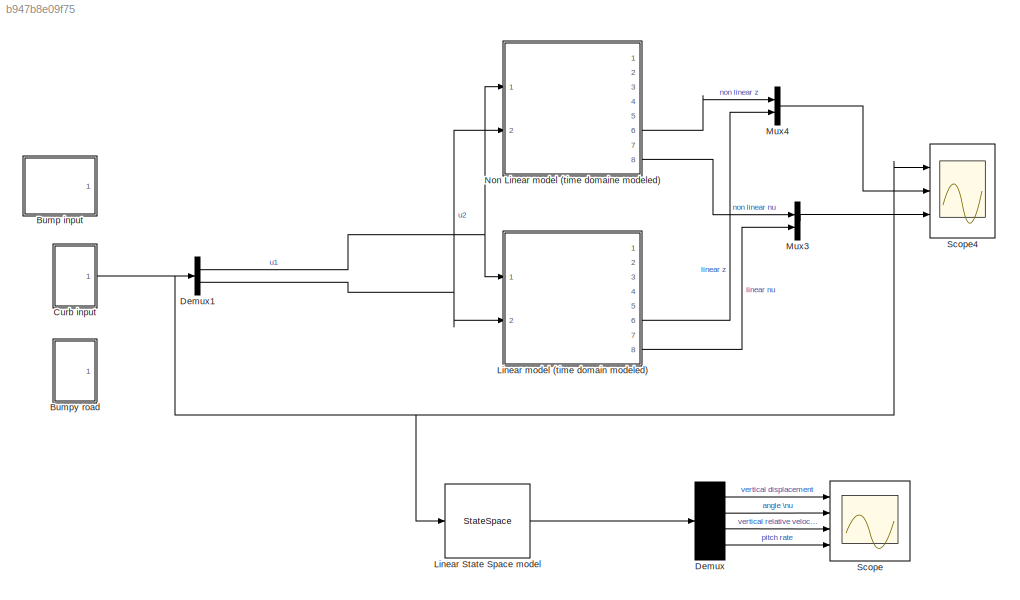
MODEL slx_b947b8e09f75
KIND model
CONFIG AbsTol = auto
CONFIG EnableMultiTasking = off
CONFIG FixedStep = auto
CONFIG MaxStep = 1e-3
CONFIG MinStep = auto
CONFIG RelTol = 1e-3
CONFIG SampleTimeConstraint = Unconstrained
CONFIG SolverName = VariableStepAuto
CONFIG StartTime = 0.0
CONFIG StopTime = 4
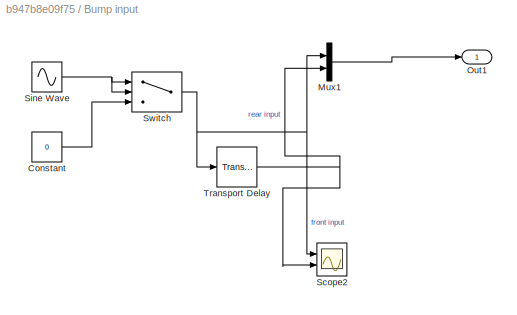
BLOCK [SubSystem] Bump input
  Ports = [0, 1]
  RequestExecContextInheritance = off
BLOCK [Constant] Bump input/Constant
  Value = 0
BLOCK [Mux] Bump input/Mux1
  DisplayOption = bar
  Inputs = 2
  Ports = [2, 1]
BLOCK [Outport] Bump input/Out1
BLOCK [Scope] Bump input/Scope2
  Floating = off
  NumInputPorts = 2
  Ports = [2]
  ScopeSpecificationString = Simulink.scopes.TimeScopeBlockCfg('CurrentConfiguration', extmgr.ConfigurationSet(extmgr.Configuration('Core','General UI',true),extmgr.Configuration('Core','Source UI',true),extmgr.Configuration('Sources','WiredSimulink',true,'DataLoggingVariableName','ScopeData1'),extmgr.Configuration('Visuals','Time Domain',true,'SerializedDisplays',{struct('MinYLimReal','-0.0375','MaxYLimReal','0.3375','YLabel...<+2018ch>
BLOCK [Sin] Bump input/Sine Wave
  Amplitude = .3
  Frequency = 1/2
  Ports = [0, 1]
  SampleTime = 0
BLOCK [Switch] Bump input/Switch
  Criteria = u2 > Threshold
  InputSameDT = off
  SaturateOnIntegerOverflow = off
BLOCK [TransportDelay] Bump input/Transport Delay
  Ports = [1, 1]
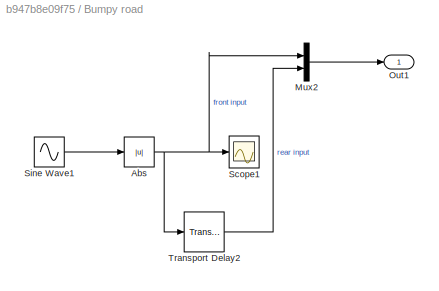
BLOCK [SubSystem] Bumpy road
  Ports = [0, 1]
  RequestExecContextInheritance = off
BLOCK [Abs] Bumpy road/Abs
  SaturateOnIntegerOverflow = off
BLOCK [Mux] Bumpy road/Mux2
  DisplayOption = bar
  Inputs = 2
  Ports = [2, 1]
BLOCK [Outport] Bumpy road/Out1
BLOCK [Scope] Bumpy road/Scope1
  Floating = off
  NumInputPorts = 1
  Ports = [1]
  ScopeSpecificationString = Simulink.scopes.TimeScopeBlockCfg('CurrentConfiguration', extmgr.ConfigurationSet(extmgr.Configuration('Core','General UI',true),extmgr.Configuration('Core','Source UI',true),extmgr.Configuration('Sources','WiredSimulink',true,'DataLoggingVariableName','ScopeData1'),extmgr.Configuration('Visuals','Time Domain',true,'SerializedDisplays',{struct('MinYLimReal','-0.00625','MaxYLimReal','1','YLabelReal...<+1444ch>
BLOCK [Sin] Bumpy road/Sine Wave1
  Amplitude = .05
  Frequency = 5
  Ports = [0, 1]
  SampleTime = 0
BLOCK [TransportDelay] Bumpy road/Transport Delay2
  Ports = [1, 1]
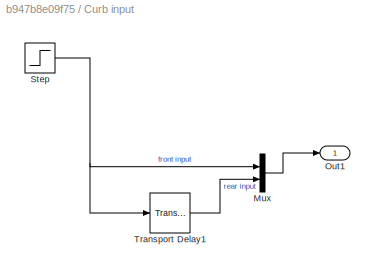
BLOCK [SubSystem] Curb input
  Ports = [0, 1]
  RequestExecContextInheritance = off
BLOCK [Mux] Curb input/Mux
  DisplayOption = bar
  Inputs = 2
  Ports = [2, 1]
BLOCK [Outport] Curb input/Out1
BLOCK [Step] Curb input/Step
  After = .2
  SampleTime = 0
BLOCK [TransportDelay] Curb input/Transport Delay1
  Ports = [1, 1]
BLOCK [Demux] Demux
  Ports = [1, 4]
BLOCK [Demux] Demux1
  Outputs = 2
  Ports = [1, 2]
BLOCK [StateSpace] Linear State Space model
  A = A
  B = B
  C = C
  D = D
  InitialCondition = 0
  Ports = [1, 1]
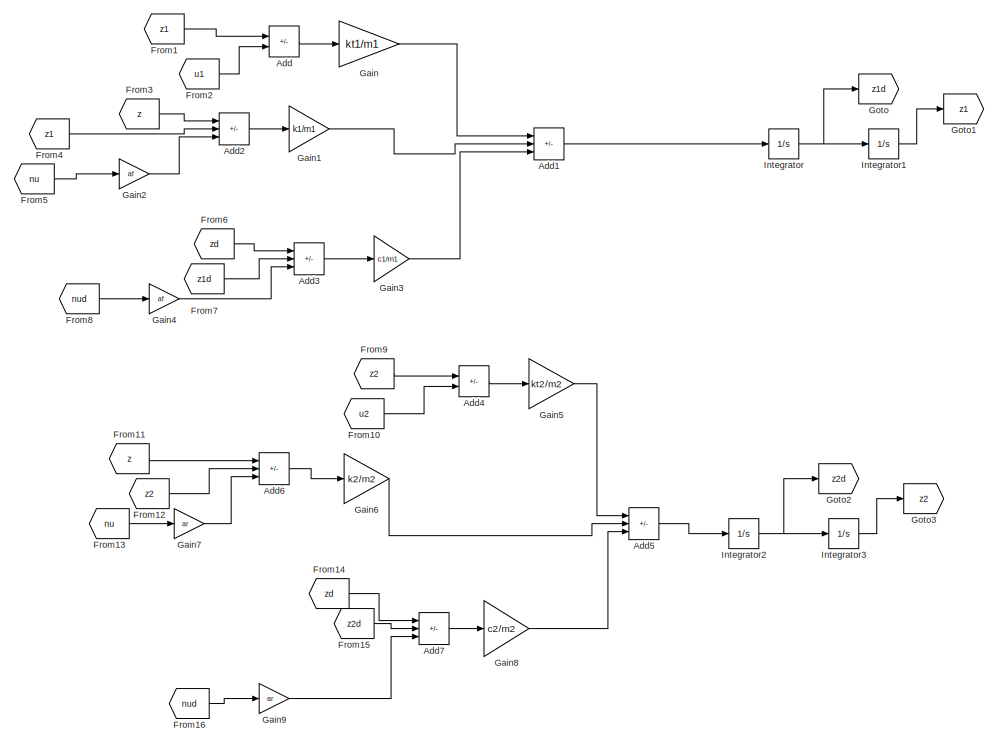
[diagram: Linear model (time domain modeled) - part 1/4, top right region]
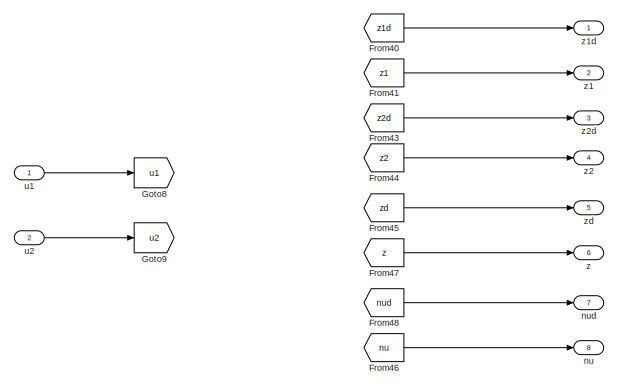
[diagram: Linear model (time domain modeled) - part 2/4, top left region]
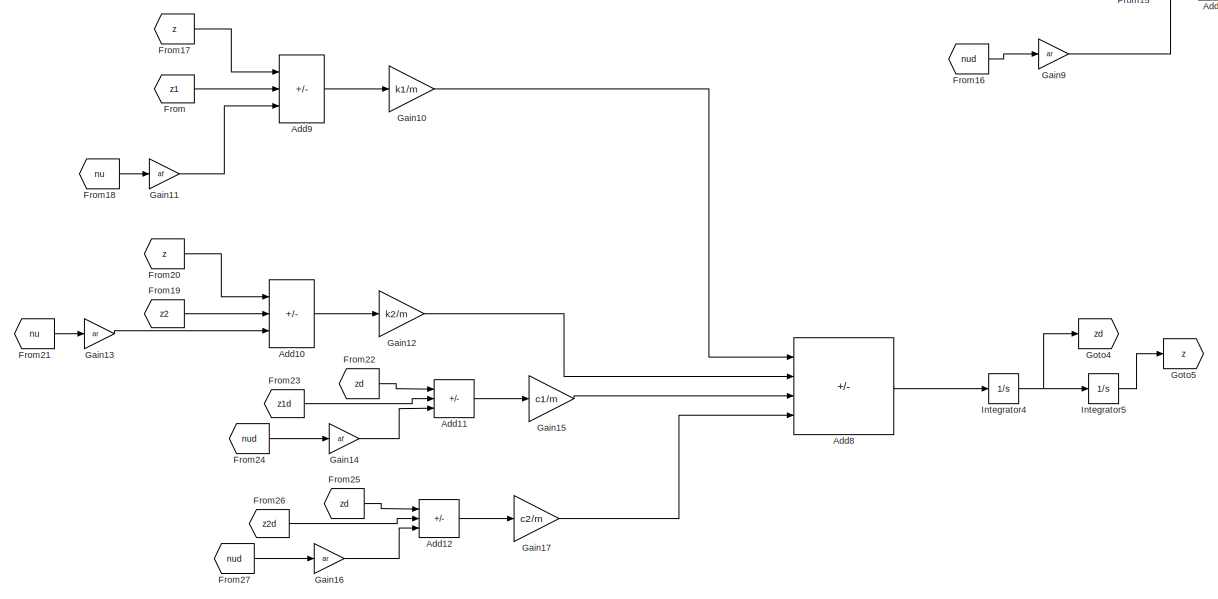
[diagram: Linear model (time domain modeled) - part 3/4, central region]
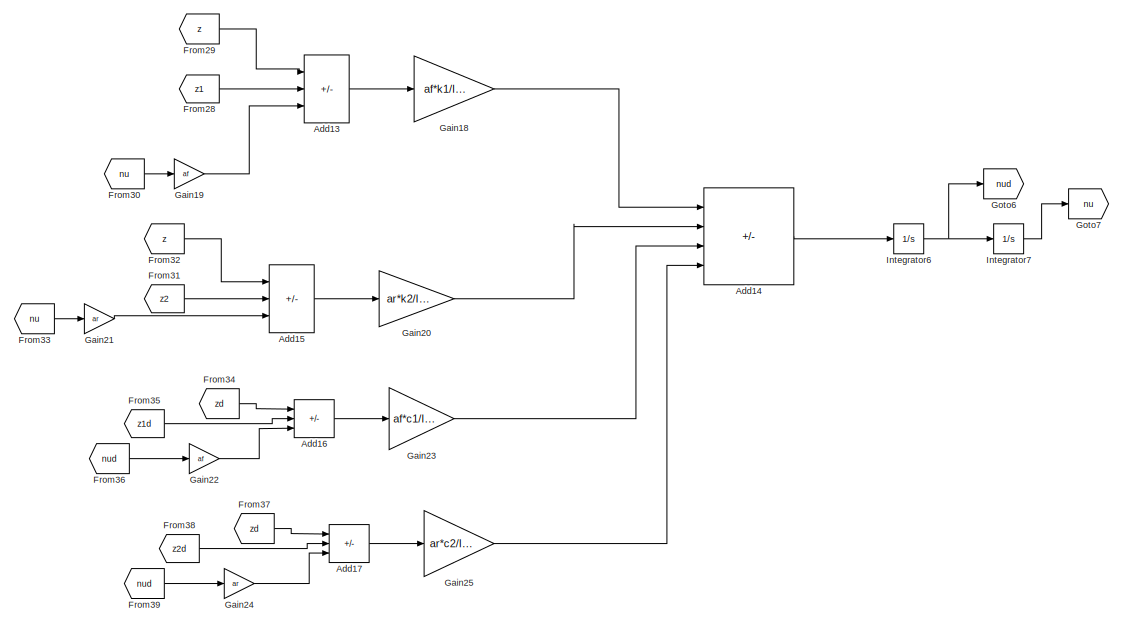
[diagram: Linear model (time domain modeled) - part 4/4, bottom center region]
BLOCK [SubSystem] Linear model (time domain modeled)
  Ports = [2, 8]
  RequestExecContextInheritance = off
BLOCK [Sum] Linear model (time domain modeled)/Add
  IconShape = rectangular
  Inputs = +-
  Ports = [2, 1]
BLOCK [Sum] Linear model (time domain modeled)/Add1
  IconShape = rectangular
  Inputs = -++
  Ports = [3, 1]
BLOCK [Sum] Linear model (time domain modeled)/Add10
  IconShape = rectangular
  Inputs = +-+
  Ports = [3, 1]
BLOCK [Sum] Linear model (time domain modeled)/Add11
  IconShape = rectangular
  Inputs = +--
  Ports = [3, 1]
BLOCK [Sum] Linear model (time domain modeled)/Add12
  IconShape = rectangular
  Inputs = +-+
  Ports = [3, 1]
BLOCK [Sum] Linear model (time domain modeled)/Add13
  IconShape = rectangular
  Inputs = +--
  Ports = [3, 1]
BLOCK [Sum] Linear model (time domain modeled)/Add14
  IconShape = rectangular
  Inputs = +-+-
  Ports = [4, 1]
BLOCK [Sum] Linear model (time domain modeled)/Add15
  IconShape = rectangular
  Inputs = +-+
  Ports = [3, 1]
BLOCK [Sum] Linear model (time domain modeled)/Add16
  IconShape = rectangular
  Inputs = +--
  Ports = [3, 1]
BLOCK [Sum] Linear model (time domain modeled)/Add17
  IconShape = rectangular
  Inputs = +-+
  Ports = [3, 1]
BLOCK [Sum] Linear model (time domain modeled)/Add2
  IconShape = rectangular
  Inputs = +--
  Ports = [3, 1]
BLOCK [Sum] Linear model (time domain modeled)/Add3
  IconShape = rectangular
  Inputs = +--
  Ports = [3, 1]
BLOCK [Sum] Linear model (time domain modeled)/Add4
  IconShape = rectangular
  Inputs = +-
  Ports = [2, 1]
BLOCK [Sum] Linear model (time domain modeled)/Add5
  IconShape = rectangular
  Inputs = -++
  Ports = [3, 1]
BLOCK [Sum] Linear model (time domain modeled)/Add6
  IconShape = rectangular
  Inputs = +-+
  Ports = [3, 1]
BLOCK [Sum] Linear model (time domain modeled)/Add7
  IconShape = rectangular
  Inputs = +-+
  Ports = [3, 1]
BLOCK [Sum] Linear model (time domain modeled)/Add8
  IconShape = rectangular
  Inputs = ----
  Ports = [4, 1]
BLOCK [Sum] Linear model (time domain modeled)/Add9
  IconShape = rectangular
  Inputs = +--
  Ports = [3, 1]
BLOCK [From] Linear model (time domain modeled)/From
  GotoTag = z1
BLOCK [From] Linear model (time domain modeled)/From1
  GotoTag = z1
BLOCK [From] Linear model (time domain modeled)/From10
  GotoTag = u2
BLOCK [From] Linear model (time domain modeled)/From11
  GotoTag = z
BLOCK [From] Linear model (time domain modeled)/From12
  GotoTag = z2
BLOCK [From] Linear model (time domain modeled)/From13
  GotoTag = nu
BLOCK [From] Linear model (time domain modeled)/From14
  GotoTag = zd
BLOCK [From] Linear model (time domain modeled)/From15
  GotoTag = z2d
BLOCK [From] Linear model (time domain modeled)/From16
  GotoTag = nud
BLOCK [From] Linear model (time domain modeled)/From17
  GotoTag = z
BLOCK [From] Linear model (time domain modeled)/From18
  GotoTag = nu
BLOCK [From] Linear model (time domain modeled)/From19
  GotoTag = z2
BLOCK [From] Linear model (time domain modeled)/From2
  GotoTag = u1
BLOCK [From] Linear model (time domain modeled)/From20
  GotoTag = z
BLOCK [From] Linear model (time domain modeled)/From21
  GotoTag = nu
BLOCK [From] Linear model (time domain modeled)/From22
  GotoTag = zd
BLOCK [From] Linear model (time domain modeled)/From23
  GotoTag = z1d
BLOCK [From] Linear model (time domain modeled)/From24
  GotoTag = nud
BLOCK [From] Linear model (time domain modeled)/From25
  GotoTag = zd
BLOCK [From] Linear model (time domain modeled)/From26
  GotoTag = z2d
BLOCK [From] Linear model (time domain modeled)/From27
  GotoTag = nud
BLOCK [From] Linear model (time domain modeled)/From28
  GotoTag = z1
BLOCK [From] Linear model (time domain modeled)/From29
  GotoTag = z
BLOCK [From] Linear model (time domain modeled)/From3
  GotoTag = z
BLOCK [From] Linear model (time domain modeled)/From30
  GotoTag = nu
BLOCK [From] Linear model (time domain modeled)/From31
  GotoTag = z2
BLOCK [From] Linear model (time domain modeled)/From32
  GotoTag = z
BLOCK [From] Linear model (time domain modeled)/From33
  GotoTag = nu
BLOCK [From] Linear model (time domain modeled)/From34
  GotoTag = zd
BLOCK [From] Linear model (time domain modeled)/From35
  GotoTag = z1d
BLOCK [From] Linear model (time domain modeled)/From36
  GotoTag = nud
BLOCK [From] Linear model (time domain modeled)/From37
  GotoTag = zd
BLOCK [From] Linear model (time domain modeled)/From38
  GotoTag = z2d
BLOCK [From] Linear model (time domain modeled)/From39
  GotoTag = nud
BLOCK [From] Linear model (time domain modeled)/From4
  GotoTag = z1
BLOCK [From] Linear model (time domain modeled)/From40
  GotoTag = z1d
BLOCK [From] Linear model (time domain modeled)/From41
  GotoTag = z1
BLOCK [From] Linear model (time domain modeled)/From43
  GotoTag = z2d
BLOCK [From] Linear model (time domain modeled)/From44
  GotoTag = z2
BLOCK [From] Linear model (time domain modeled)/From45
  GotoTag = zd
BLOCK [From] Linear model (time domain modeled)/From46
  GotoTag = nu
BLOCK [From] Linear model (time domain modeled)/From47
  GotoTag = z
BLOCK [From] Linear model (time domain modeled)/From48
  GotoTag = nud
BLOCK [From] Linear model (time domain modeled)/From5
  GotoTag = nu
BLOCK [From] Linear model (time domain modeled)/From6
  GotoTag = zd
BLOCK [From] Linear model (time domain modeled)/From7
  GotoTag = z1d
BLOCK [From] Linear model (time domain modeled)/From8
  GotoTag = nud
BLOCK [From] Linear model (time domain modeled)/From9
  GotoTag = z2
BLOCK [Gain] Linear model (time domain modeled)/Gain
  Gain = kt1/m1
BLOCK [Gain] Linear model (time domain modeled)/Gain1
  Gain = k1/m1
BLOCK [Gain] Linear model (time domain modeled)/Gain10
  Gain = k1/m
BLOCK [Gain] Linear model (time domain modeled)/Gain11
  Gain = af
BLOCK [Gain] Linear model (time domain modeled)/Gain12
  Gain = k2/m
BLOCK [Gain] Linear model (time domain modeled)/Gain13
  Gain = ar
BLOCK [Gain] Linear model (time domain modeled)/Gain14
  Gain = af
BLOCK [Gain] Linear model (time domain modeled)/Gain15
  Gain = c1/m
BLOCK [Gain] Linear model (time domain modeled)/Gain16
  Gain = ar
BLOCK [Gain] Linear model (time domain modeled)/Gain17
  Gain = c2/m
BLOCK [Gain] Linear model (time domain modeled)/Gain18
  Gain = af*k1/Iyy
BLOCK [Gain] Linear model (time domain modeled)/Gain19
  Gain = af
BLOCK [Gain] Linear model (time domain modeled)/Gain2
  Gain = af
BLOCK [Gain] Linear model (time domain modeled)/Gain20
  Gain = ar*k2/Iyy
BLOCK [Gain] Linear model (time domain modeled)/Gain21
  Gain = ar
BLOCK [Gain] Linear model (time domain modeled)/Gain22
  Gain = af
BLOCK [Gain] Linear model (time domain modeled)/Gain23
  Gain = af*c1/Iyy
BLOCK [Gain] Linear model (time domain modeled)/Gain24
  Gain = ar
BLOCK [Gain] Linear model (time domain modeled)/Gain25
  Gain = ar*c2/Iyy
BLOCK [Gain] Linear model (time domain modeled)/Gain3
  Gain = c1/m1
BLOCK [Gain] Linear model (time domain modeled)/Gain4
  Gain = af
BLOCK [Gain] Linear model (time domain modeled)/Gain5
  Gain = kt2/m2
BLOCK [Gain] Linear model (time domain modeled)/Gain6
  Gain = k2/m2
BLOCK [Gain] Linear model (time domain modeled)/Gain7
  Gain = ar
BLOCK [Gain] Linear model (time domain modeled)/Gain8
  Gain = c2/m2
BLOCK [Gain] Linear model (time domain modeled)/Gain9
  Gain = ar
BLOCK [Goto] Linear model (time domain modeled)/Goto
  GotoTag = z1d
BLOCK [Goto] Linear model (time domain modeled)/Goto1
  GotoTag = z1
BLOCK [Goto] Linear model (time domain modeled)/Goto2
  GotoTag = z2d
BLOCK [Goto] Linear model (time domain modeled)/Goto3
  GotoTag = z2
BLOCK [Goto] Linear model (time domain modeled)/Goto4
  GotoTag = zd
BLOCK [Goto] Linear model (time domain modeled)/Goto5
  GotoTag = z
BLOCK [Goto] Linear model (time domain modeled)/Goto6
  GotoTag = nud
BLOCK [Goto] Linear model (time domain modeled)/Goto7
  GotoTag = nu
BLOCK [Goto] Linear model (time domain modeled)/Goto8
  GotoTag = u1
BLOCK [Goto] Linear model (time domain modeled)/Goto9
  GotoTag = u2
BLOCK [Integrator] Linear model (time domain modeled)/Integrator
  Ports = [1, 1]
BLOCK [Integrator] Linear model (time domain modeled)/Integrator1
  Ports = [1, 1]
BLOCK [Integrator] Linear model (time domain modeled)/Integrator2
  Ports = [1, 1]
BLOCK [Integrator] Linear model (time domain modeled)/Integrator3
  Ports = [1, 1]
BLOCK [Integrator] Linear model (time domain modeled)/Integrator4
  Ports = [1, 1]
BLOCK [Integrator] Linear model (time domain modeled)/Integrator5
  Ports = [1, 1]
BLOCK [Integrator] Linear model (time domain modeled)/Integrator6
  Ports = [1, 1]
BLOCK [Integrator] Linear model (time domain modeled)/Integrator7
  Ports = [1, 1]
BLOCK [Outport] Linear model (time domain modeled)/nu
  Port = 8
BLOCK [Outport] Linear model (time domain modeled)/nud
  Port = 7
BLOCK [Inport] Linear model (time domain modeled)/u1
BLOCK [Inport] Linear model (time domain modeled)/u2
  Port = 2
BLOCK [Outport] Linear model (time domain modeled)/z
  Port = 6
BLOCK [Outport] Linear model (time domain modeled)/z1
  Port = 2
BLOCK [Outport] Linear model (time domain modeled)/z1d
BLOCK [Outport] Linear model (time domain modeled)/z2
  Port = 4
BLOCK [Outport] Linear model (time domain modeled)/z2d
  Port = 3
BLOCK [Outport] Linear model (time domain modeled)/zd
  Port = 5
BLOCK [Mux] Mux3
  DisplayOption = bar
  Inputs = 2
  Ports = [2, 1]
BLOCK [Mux] Mux4
  DisplayOption = bar
  Inputs = 2
  Ports = [2, 1]
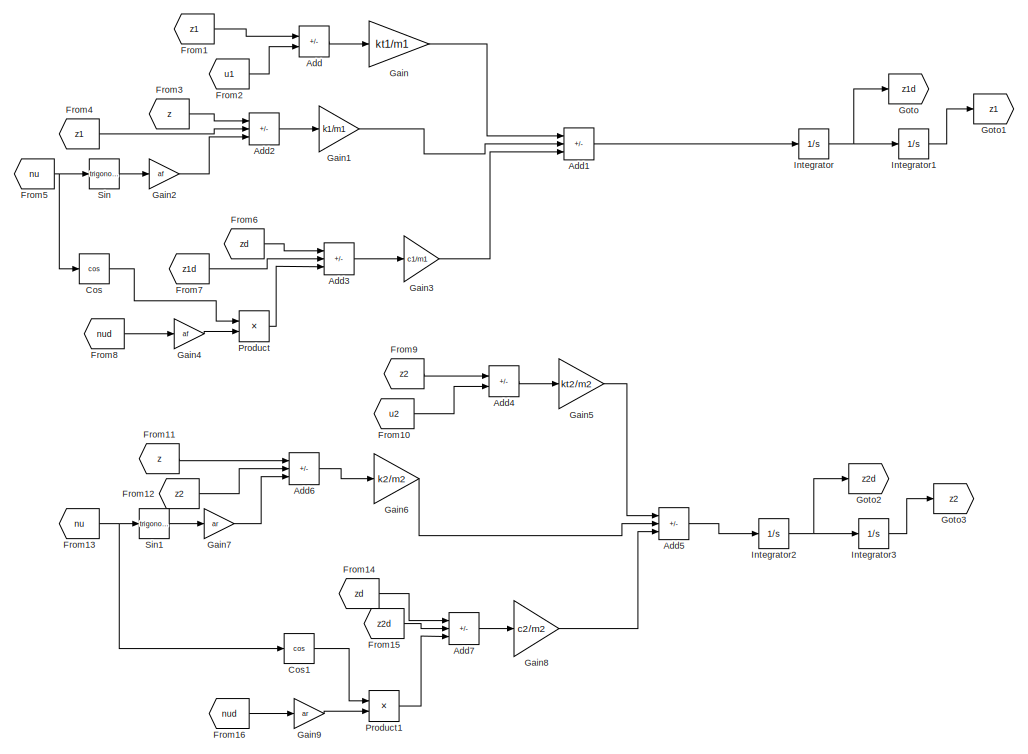
[diagram: Non Linear model (time domaine modeled) - part 1/4, top right region]
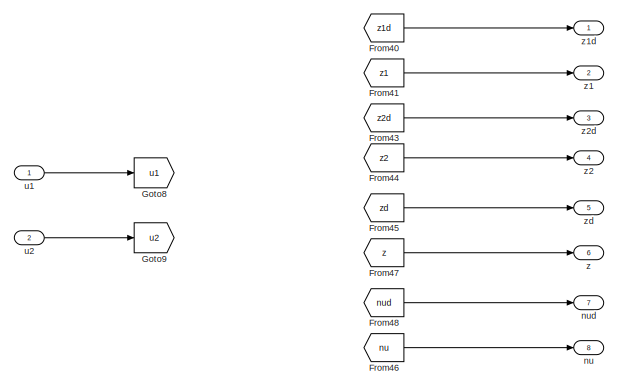
[diagram: Non Linear model (time domaine modeled) - part 2/4, top left region]
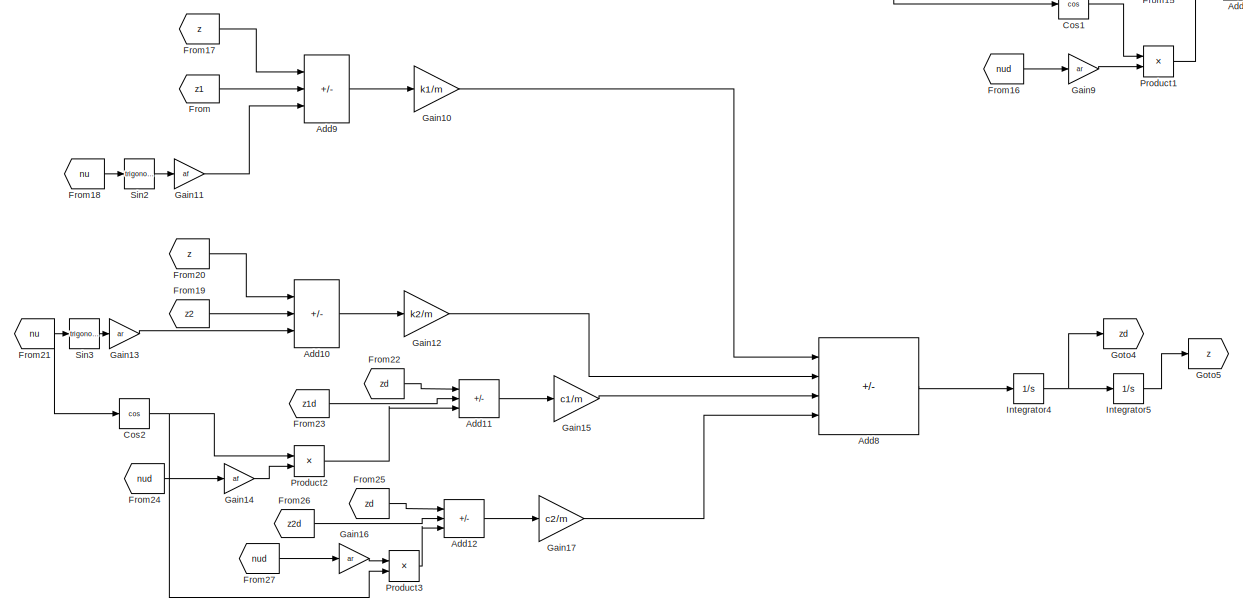
[diagram: Non Linear model (time domaine modeled) - part 3/4, central region]
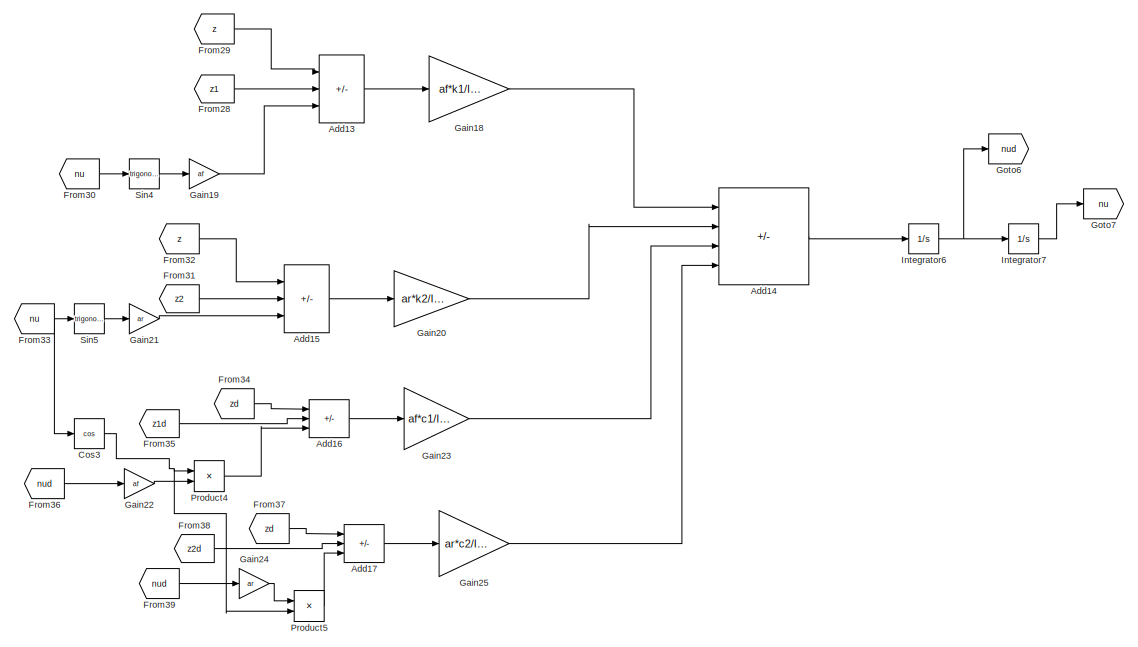
[diagram: Non Linear model (time domaine modeled) - part 4/4, bottom center region]
BLOCK [SubSystem] Non Linear model (time domaine modeled)
  Ports = [2, 8]
  RequestExecContextInheritance = off
BLOCK [Sum] Non Linear model (time domaine modeled)/Add
  IconShape = rectangular
  Inputs = +-
  Ports = [2, 1]
BLOCK [Sum] Non Linear model (time domaine modeled)/Add1
  IconShape = rectangular
  Inputs = -++
  Ports = [3, 1]
BLOCK [Sum] Non Linear model (time domaine modeled)/Add10
  IconShape = rectangular
  Inputs = +-+
  Ports = [3, 1]
BLOCK [Sum] Non Linear model (time domaine modeled)/Add11
  IconShape = rectangular
  Inputs = +--
  Ports = [3, 1]
BLOCK [Sum] Non Linear model (time domaine modeled)/Add12
  IconShape = rectangular
  Inputs = +-+
  Ports = [3, 1]
BLOCK [Sum] Non Linear model (time domaine modeled)/Add13
  IconShape = rectangular
  Inputs = +--
  Ports = [3, 1]
BLOCK [Sum] Non Linear model (time domaine modeled)/Add14
  IconShape = rectangular
  Inputs = +-+-
  Ports = [4, 1]
BLOCK [Sum] Non Linear model (time domaine modeled)/Add15
  IconShape = rectangular
  Inputs = +-+
  Ports = [3, 1]
BLOCK [Sum] Non Linear model (time domaine modeled)/Add16
  IconShape = rectangular
  Inputs = +--
  Ports = [3, 1]
BLOCK [Sum] Non Linear model (time domaine modeled)/Add17
  IconShape = rectangular
  Inputs = +-+
  Ports = [3, 1]
BLOCK [Sum] Non Linear model (time domaine modeled)/Add2
  IconShape = rectangular
  Inputs = +--
  Ports = [3, 1]
BLOCK [Sum] Non Linear model (time domaine modeled)/Add3
  IconShape = rectangular
  Inputs = +--
  Ports = [3, 1]
BLOCK [Sum] Non Linear model (time domaine modeled)/Add4
  IconShape = rectangular
  Inputs = +-
  Ports = [2, 1]
BLOCK [Sum] Non Linear model (time domaine modeled)/Add5
  IconShape = rectangular
  Inputs = -++
  Ports = [3, 1]
BLOCK [Sum] Non Linear model (time domaine modeled)/Add6
  IconShape = rectangular
  Inputs = +-+
  Ports = [3, 1]
BLOCK [Sum] Non Linear model (time domaine modeled)/Add7
  IconShape = rectangular
  Inputs = +-+
  Ports = [3, 1]
BLOCK [Sum] Non Linear model (time domaine modeled)/Add8
  IconShape = rectangular
  Inputs = ----
  Ports = [4, 1]
BLOCK [Sum] Non Linear model (time domaine modeled)/Add9
  IconShape = rectangular
  Inputs = +--
  Ports = [3, 1]
BLOCK [Trigonometry] Non Linear model (time domaine modeled)/Cos
  Operator = cos
  Ports = [1, 1]
BLOCK [Trigonometry] Non Linear model (time domaine modeled)/Cos1
  Operator = cos
  Ports = [1, 1]
BLOCK [Trigonometry] Non Linear model (time domaine modeled)/Cos2
  Operator = cos
  Ports = [1, 1]
BLOCK [Trigonometry] Non Linear model (time domaine modeled)/Cos3
  Operator = cos
  Ports = [1, 1]
BLOCK [From] Non Linear model (time domaine modeled)/From
  GotoTag = z1
BLOCK [From] Non Linear model (time domaine modeled)/From1
  GotoTag = z1
BLOCK [From] Non Linear model (time domaine modeled)/From10
  GotoTag = u2
BLOCK [From] Non Linear model (time domaine modeled)/From11
  GotoTag = z
BLOCK [From] Non Linear model (time domaine modeled)/From12
  GotoTag = z2
BLOCK [From] Non Linear model (time domaine modeled)/From13
  GotoTag = nu
BLOCK [From] Non Linear model (time domaine modeled)/From14
  GotoTag = zd
BLOCK [From] Non Linear model (time domaine modeled)/From15
  GotoTag = z2d
BLOCK [From] Non Linear model (time domaine modeled)/From16
  GotoTag = nud
BLOCK [From] Non Linear model (time domaine modeled)/From17
  GotoTag = z
BLOCK [From] Non Linear model (time domaine modeled)/From18
  GotoTag = nu
BLOCK [From] Non Linear model (time domaine modeled)/From19
  GotoTag = z2
BLOCK [From] Non Linear model (time domaine modeled)/From2
  GotoTag = u1
BLOCK [From] Non Linear model (time domaine modeled)/From20
  GotoTag = z
BLOCK [From] Non Linear model (time domaine modeled)/From21
  GotoTag = nu
BLOCK [From] Non Linear model (time domaine modeled)/From22
  GotoTag = zd
BLOCK [From] Non Linear model (time domaine modeled)/From23
  GotoTag = z1d
BLOCK [From] Non Linear model (time domaine modeled)/From24
  GotoTag = nud
BLOCK [From] Non Linear model (time domaine modeled)/From25
  GotoTag = zd
BLOCK [From] Non Linear model (time domaine modeled)/From26
  GotoTag = z2d
BLOCK [From] Non Linear model (time domaine modeled)/From27
  GotoTag = nud
BLOCK [From] Non Linear model (time domaine modeled)/From28
  GotoTag = z1
BLOCK [From] Non Linear model (time domaine modeled)/From29
  GotoTag = z
BLOCK [From] Non Linear model (time domaine modeled)/From3
  GotoTag = z
BLOCK [From] Non Linear model (time domaine modeled)/From30
  GotoTag = nu
BLOCK [From] Non Linear model (time domaine modeled)/From31
  GotoTag = z2
BLOCK [From] Non Linear model (time domaine modeled)/From32
  GotoTag = z
BLOCK [From] Non Linear model (time domaine modeled)/From33
  GotoTag = nu
BLOCK [From] Non Linear model (time domaine modeled)/From34
  GotoTag = zd
BLOCK [From] Non Linear model (time domaine modeled)/From35
  GotoTag = z1d
BLOCK [From] Non Linear model (time domaine modeled)/From36
  GotoTag = nud
BLOCK [From] Non Linear model (time domaine modeled)/From37
  GotoTag = zd
BLOCK [From] Non Linear model (time domaine modeled)/From38
  GotoTag = z2d
BLOCK [From] Non Linear model (time domaine modeled)/From39
  GotoTag = nud
BLOCK [From] Non Linear model (time domaine modeled)/From4
  GotoTag = z1
BLOCK [From] Non Linear model (time domaine modeled)/From40
  GotoTag = z1d
BLOCK [From] Non Linear model (time domaine modeled)/From41
  GotoTag = z1
BLOCK [From] Non Linear model (time domaine modeled)/From43
  GotoTag = z2d
BLOCK [From] Non Linear model (time domaine modeled)/From44
  GotoTag = z2
BLOCK [From] Non Linear model (time domaine modeled)/From45
  GotoTag = zd
BLOCK [From] Non Linear model (time domaine modeled)/From46
  GotoTag = nu
BLOCK [From] Non Linear model (time domaine modeled)/From47
  GotoTag = z
BLOCK [From] Non Linear model (time domaine modeled)/From48
  GotoTag = nud
BLOCK [From] Non Linear model (time domaine modeled)/From5
  GotoTag = nu
BLOCK [From] Non Linear model (time domaine modeled)/From6
  GotoTag = zd
BLOCK [From] Non Linear model (time domaine modeled)/From7
  GotoTag = z1d
BLOCK [From] Non Linear model (time domaine modeled)/From8
  GotoTag = nud
BLOCK [From] Non Linear model (time domaine modeled)/From9
  GotoTag = z2
BLOCK [Gain] Non Linear model (time domaine modeled)/Gain
  Gain = kt1/m1
BLOCK [Gain] Non Linear model (time domaine modeled)/Gain1
  Gain = k1/m1
BLOCK [Gain] Non Linear model (time domaine modeled)/Gain10
  Gain = k1/m
BLOCK [Gain] Non Linear model (time domaine modeled)/Gain11
  Gain = af
BLOCK [Gain] Non Linear model (time domaine modeled)/Gain12
  Gain = k2/m
BLOCK [Gain] Non Linear model (time domaine modeled)/Gain13
  Gain = ar
BLOCK [Gain] Non Linear model (time domaine modeled)/Gain14
  Gain = af
BLOCK [Gain] Non Linear model (time domaine modeled)/Gain15
  Gain = c1/m
BLOCK [Gain] Non Linear model (time domaine modeled)/Gain16
  Gain = ar
BLOCK [Gain] Non Linear model (time domaine modeled)/Gain17
  Gain = c2/m
BLOCK [Gain] Non Linear model (time domaine modeled)/Gain18
  Gain = af*k1/Iyy
BLOCK [Gain] Non Linear model (time domaine modeled)/Gain19
  Gain = af
BLOCK [Gain] Non Linear model (time domaine modeled)/Gain2
  Gain = af
BLOCK [Gain] Non Linear model (time domaine modeled)/Gain20
  Gain = ar*k2/Iyy
BLOCK [Gain] Non Linear model (time domaine modeled)/Gain21
  Gain = ar
BLOCK [Gain] Non Linear model (time domaine modeled)/Gain22
  Gain = af
BLOCK [Gain] Non Linear model (time domaine modeled)/Gain23
  Gain = af*c1/Iyy
BLOCK [Gain] Non Linear model (time domaine modeled)/Gain24
  Gain = ar
BLOCK [Gain] Non Linear model (time domaine modeled)/Gain25
  Gain = ar*c2/Iyy
BLOCK [Gain] Non Linear model (time domaine modeled)/Gain3
  Gain = c1/m1
BLOCK [Gain] Non Linear model (time domaine modeled)/Gain4
  Gain = af
BLOCK [Gain] Non Linear model (time domaine modeled)/Gain5
  Gain = kt2/m2
BLOCK [Gain] Non Linear model (time domaine modeled)/Gain6
  Gain = k2/m2
BLOCK [Gain] Non Linear model (time domaine modeled)/Gain7
  Gain = ar
BLOCK [Gain] Non Linear model (time domaine modeled)/Gain8
  Gain = c2/m2
BLOCK [Gain] Non Linear model (time domaine modeled)/Gain9
  Gain = ar
BLOCK [Goto] Non Linear model (time domaine modeled)/Goto
  GotoTag = z1d
BLOCK [Goto] Non Linear model (time domaine modeled)/Goto1
  GotoTag = z1
BLOCK [Goto] Non Linear model (time domaine modeled)/Goto2
  GotoTag = z2d
BLOCK [Goto] Non Linear model (time domaine modeled)/Goto3
  GotoTag = z2
BLOCK [Goto] Non Linear model (time domaine modeled)/Goto4
  GotoTag = zd
BLOCK [Goto] Non Linear model (time domaine modeled)/Goto5
  GotoTag = z
BLOCK [Goto] Non Linear model (time domaine modeled)/Goto6
  GotoTag = nud
BLOCK [Goto] Non Linear model (time domaine modeled)/Goto7
  GotoTag = nu
BLOCK [Goto] Non Linear model (time domaine modeled)/Goto8
  GotoTag = u1
BLOCK [Goto] Non Linear model (time domaine modeled)/Goto9
  GotoTag = u2
BLOCK [Integrator] Non Linear model (time domaine modeled)/Integrator
  Ports = [1, 1]
BLOCK [Integrator] Non Linear model (time domaine modeled)/Integrator1
  Ports = [1, 1]
BLOCK [Integrator] Non Linear model (time domaine modeled)/Integrator2
  Ports = [1, 1]
BLOCK [Integrator] Non Linear model (time domaine modeled)/Integrator3
  Ports = [1, 1]
BLOCK [Integrator] Non Linear model (time domaine modeled)/Integrator4
  Ports = [1, 1]
BLOCK [Integrator] Non Linear model (time domaine modeled)/Integrator5
  Ports = [1, 1]
BLOCK [Integrator] Non Linear model (time domaine modeled)/Integrator6
  Ports = [1, 1]
BLOCK [Integrator] Non Linear model (time domaine modeled)/Integrator7
  Ports = [1, 1]
BLOCK [Product] Non Linear model (time domaine modeled)/Product
  Ports = [2, 1]
BLOCK [Product] Non Linear model (time domaine modeled)/Product1
  Ports = [2, 1]
BLOCK [Product] Non Linear model (time domaine modeled)/Product2
  Ports = [2, 1]
BLOCK [Product] Non Linear model (time domaine modeled)/Product3
  Ports = [2, 1]
BLOCK [Product] Non Linear model (time domaine modeled)/Product4
  Ports = [2, 1]
BLOCK [Product] Non Linear model (time domaine modeled)/Product5
  Ports = [2, 1]
BLOCK [Trigonometry] Non Linear model (time domaine modeled)/Sin
  Ports = [1, 1]
BLOCK [Trigonometry] Non Linear model (time domaine modeled)/Sin1
  Ports = [1, 1]
BLOCK [Trigonometry] Non Linear model (time domaine modeled)/Sin2
  Ports = [1, 1]
BLOCK [Trigonometry] Non Linear model (time domaine modeled)/Sin3
  Ports = [1, 1]
BLOCK [Trigonometry] Non Linear model (time domaine modeled)/Sin4
  Ports = [1, 1]
BLOCK [Trigonometry] Non Linear model (time domaine modeled)/Sin5
  Ports = [1, 1]
BLOCK [Outport] Non Linear model (time domaine modeled)/nu
  Port = 8
BLOCK [Outport] Non Linear model (time domaine modeled)/nud
  Port = 7
BLOCK [Inport] Non Linear model (time domaine modeled)/u1
BLOCK [Inport] Non Linear model (time domaine modeled)/u2
  Port = 2
BLOCK [Outport] Non Linear model (time domaine modeled)/z
  Port = 6
BLOCK [Outport] Non Linear model (time domaine modeled)/z1
  Port = 2
BLOCK [Outport] Non Linear model (time domaine modeled)/z1d
BLOCK [Outport] Non Linear model (time domaine modeled)/z2
  Port = 4
BLOCK [Outport] Non Linear model (time domaine modeled)/z2d
  Port = 3
BLOCK [Outport] Non Linear model (time domaine modeled)/zd
  Port = 5
BLOCK [Scope] Scope
  Floating = off
  NumInputPorts = 4
  Ports = [4]
  ScopeSpecificationString = Simulink.scopes.TimeScopeBlockCfg('CurrentConfiguration', extmgr.ConfigurationSet(extmgr.Configuration('Core','General UI',true),extmgr.Configuration('Core','Source UI',true),extmgr.Configuration('Sources','WiredSimulink',true),extmgr.Configuration('Visuals','Time Domain',true,'SerializedDisplays',{struct('MinYLimReal','-1.00000','MaxYLimReal','1.00000','YLabelReal','','MinYLimMag','0.00000','MaxY...<+3728ch>
BLOCK [Scope] Scope4
  Floating = off
  NumInputPorts = 3
  Ports = [3]
  ScopeSpecificationString = Simulink.scopes.TimeScopeBlockCfg('CurrentConfiguration', extmgr.ConfigurationSet(extmgr.Configuration('Core','General UI',true),extmgr.Configuration('Core','Source UI',true),extmgr.Configuration('Sources','WiredSimulink',true,'DataLoggingVariableName','ScopeData3'),extmgr.Configuration('Visuals','Time Domain',true,'SerializedDisplays',{struct('MinYLimReal','-0.125','MaxYLimReal','1.125','YLabelRe...<+3409ch>
LINE Bump input/Constant:1 -> Bump input/Switch:3
LINE Bump input/Mux1:1 -> Bump input/Out1:1
NET Bump input/Sine Wave:1 -> Bump input/Switch:1, Bump input/Switch:2
NET Bump input/Switch:1 -> Bump input/Mux1:1, Bump input/Scope2:1, Bump input/Transport Delay:1
NET Bump input/Transport Delay:1 -> Bump input/Mux1:2, Bump input/Scope2:2
NET Bumpy road/Abs:1 -> Bumpy road/Mux2:1, Bumpy road/Scope1:1, Bumpy road/Transport Delay2:1
LINE Bumpy road/Mux2:1 -> Bumpy road/Out1:1
LINE Bumpy road/Sine Wave1:1 -> Bumpy road/Abs:1
LINE Bumpy road/Transport Delay2:1 -> Bumpy road/Mux2:2
LINE Curb input/Mux:1 -> Curb input/Out1:1
NET Curb input/Step:1 -> Curb input/Mux:1, Curb input/Transport Delay1:1
LINE Curb input/Transport Delay1:1 -> Curb input/Mux:2
NET Curb input:1 -> Demux1:1, Linear State Space model:1, Scope4:1
NET Demux1:1 -> Linear model (time domain modeled):1, Non Linear model (time domaine modeled):1
NET Demux1:2 -> Linear model (time domain modeled):2, Non Linear model (time domaine modeled):2
LINE Demux:1 -> Scope:1
LINE Demux:2 -> Scope:2
LINE Demux:3 -> Scope:3
LINE Demux:4 -> Scope:4
LINE Linear State Space model:1 -> Demux:1
LINE Linear model (time domain modeled)/Add10:1 -> Linear model (time domain modeled)/Gain12:1
LINE Linear model (time domain modeled)/Add11:1 -> Linear model (time domain modeled)/Gain15:1
LINE Linear model (time domain modeled)/Add12:1 -> Linear model (time domain modeled)/Gain17:1
LINE Linear model (time domain modeled)/Add13:1 -> Linear model (time domain modeled)/Gain18:1
LINE Linear model (time domain modeled)/Add14:1 -> Linear model (time domain modeled)/Integrator6:1
LINE Linear model (time domain modeled)/Add15:1 -> Linear model (time domain modeled)/Gain20:1
LINE Linear model (time domain modeled)/Add16:1 -> Linear model (time domain modeled)/Gain23:1
LINE Linear model (time domain modeled)/Add17:1 -> Linear model (time domain modeled)/Gain25:1
LINE Linear model (time domain modeled)/Add1:1 -> Linear model (time domain modeled)/Integrator:1
LINE Linear model (time domain modeled)/Add2:1 -> Linear model (time domain modeled)/Gain1:1
LINE Linear model (time domain modeled)/Add3:1 -> Linear model (time domain modeled)/Gain3:1
LINE Linear model (time domain modeled)/Add4:1 -> Linear model (time domain modeled)/Gain5:1
LINE Linear model (time domain modeled)/Add5:1 -> Linear model (time domain modeled)/Integrator2:1
LINE Linear model (time domain modeled)/Add6:1 -> Linear model (time domain modeled)/Gain6:1
LINE Linear model (time domain modeled)/Add7:1 -> Linear model (time domain modeled)/Gain8:1
LINE Linear model (time domain modeled)/Add8:1 -> Linear model (time domain modeled)/Integrator4:1
LINE Linear model (time domain modeled)/Add9:1 -> Linear model (time domain modeled)/Gain10:1
LINE Linear model (time domain modeled)/Add:1 -> Linear model (time domain modeled)/Gain:1
LINE Linear model (time domain modeled)/From10:1 -> Linear model (time domain modeled)/Add4:2
LINE Linear model (time domain modeled)/From11:1 -> Linear model (time domain modeled)/Add6:1
LINE Linear model (time domain modeled)/From12:1 -> Linear model (time domain modeled)/Add6:2
LINE Linear model (time domain modeled)/From13:1 -> Linear model (time domain modeled)/Gain7:1
LINE Linear model (time domain modeled)/From14:1 -> Linear model (time domain modeled)/Add7:1
LINE Linear model (time domain modeled)/From15:1 -> Linear model (time domain modeled)/Add7:2
LINE Linear model (time domain modeled)/From16:1 -> Linear model (time domain modeled)/Gain9:1
LINE Linear model (time domain modeled)/From17:1 -> Linear model (time domain modeled)/Add9:1
LINE Linear model (time domain modeled)/From18:1 -> Linear model (time domain modeled)/Gain11:1
LINE Linear model (time domain modeled)/From19:1 -> Linear model (time domain modeled)/Add10:2
LINE Linear model (time domain modeled)/From1:1 -> Linear model (time domain modeled)/Add:1
LINE Linear model (time domain modeled)/From20:1 -> Linear model (time domain modeled)/Add10:1
LINE Linear model (time domain modeled)/From21:1 -> Linear model (time domain modeled)/Gain13:1
LINE Linear model (time domain modeled)/From22:1 -> Linear model (time domain modeled)/Add11:1
LINE Linear model (time domain modeled)/From23:1 -> Linear model (time domain modeled)/Add11:2
LINE Linear model (time domain modeled)/From24:1 -> Linear model (time domain modeled)/Gain14:1
LINE Linear model (time domain modeled)/From25:1 -> Linear model (time domain modeled)/Add12:1
LINE Linear model (time domain modeled)/From26:1 -> Linear model (time domain modeled)/Add12:2
LINE Linear model (time domain modeled)/From27:1 -> Linear model (time domain modeled)/Gain16:1
LINE Linear model (time domain modeled)/From28:1 -> Linear model (time domain modeled)/Add13:2
LINE Linear model (time domain modeled)/From29:1 -> Linear model (time domain modeled)/Add13:1
LINE Linear model (time domain modeled)/From2:1 -> Linear model (time domain modeled)/Add:2
LINE Linear model (time domain modeled)/From30:1 -> Linear model (time domain modeled)/Gain19:1
LINE Linear model (time domain modeled)/From31:1 -> Linear model (time domain modeled)/Add15:2
LINE Linear model (time domain modeled)/From32:1 -> Linear model (time domain modeled)/Add15:1
LINE Linear model (time domain modeled)/From33:1 -> Linear model (time domain modeled)/Gain21:1
LINE Linear model (time domain modeled)/From34:1 -> Linear model (time domain modeled)/Add16:1
LINE Linear model (time domain modeled)/From35:1 -> Linear model (time domain modeled)/Add16:2
LINE Linear model (time domain modeled)/From36:1 -> Linear model (time domain modeled)/Gain22:1
LINE Linear model (time domain modeled)/From37:1 -> Linear model (time domain modeled)/Add17:1
LINE Linear model (time domain modeled)/From38:1 -> Linear model (time domain modeled)/Add17:2
LINE Linear model (time domain modeled)/From39:1 -> Linear model (time domain modeled)/Gain24:1
LINE Linear model (time domain modeled)/From3:1 -> Linear model (time domain modeled)/Add2:1
LINE Linear model (time domain modeled)/From40:1 -> Linear model (time domain modeled)/z1d:1
LINE Linear model (time domain modeled)/From41:1 -> Linear model (time domain modeled)/z1:1
LINE Linear model (time domain modeled)/From43:1 -> Linear model (time domain modeled)/z2d:1
LINE Linear model (time domain modeled)/From44:1 -> Linear model (time domain modeled)/z2:1
LINE Linear model (time domain modeled)/From45:1 -> Linear model (time domain modeled)/zd:1
LINE Linear model (time domain modeled)/From46:1 -> Linear model (time domain modeled)/nu:1
LINE Linear model (time domain modeled)/From47:1 -> Linear model (time domain modeled)/z:1
LINE Linear model (time domain modeled)/From48:1 -> Linear model (time domain modeled)/nud:1
LINE Linear model (time domain modeled)/From4:1 -> Linear model (time domain modeled)/Add2:2
LINE Linear model (time domain modeled)/From5:1 -> Linear model (time domain modeled)/Gain2:1
LINE Linear model (time domain modeled)/From6:1 -> Linear model (time domain modeled)/Add3:1
LINE Linear model (time domain modeled)/From7:1 -> Linear model (time domain modeled)/Add3:2
LINE Linear model (time domain modeled)/From8:1 -> Linear model (time domain modeled)/Gain4:1
LINE Linear model (time domain modeled)/From9:1 -> Linear model (time domain modeled)/Add4:1
LINE Linear model (time domain modeled)/From:1 -> Linear model (time domain modeled)/Add9:2
LINE Linear model (time domain modeled)/Gain10:1 -> Linear model (time domain modeled)/Add8:1
LINE Linear model (time domain modeled)/Gain11:1 -> Linear model (time domain modeled)/Add9:3
LINE Linear model (time domain modeled)/Gain12:1 -> Linear model (time domain modeled)/Add8:2
LINE Linear model (time domain modeled)/Gain13:1 -> Linear model (time domain modeled)/Add10:3
LINE Linear model (time domain modeled)/Gain14:1 -> Linear model (time domain modeled)/Add11:3
LINE Linear model (time domain modeled)/Gain15:1 -> Linear model (time domain modeled)/Add8:3
LINE Linear model (time domain modeled)/Gain16:1 -> Linear model (time domain modeled)/Add12:3
LINE Linear model (time domain modeled)/Gain17:1 -> Linear model (time domain modeled)/Add8:4
LINE Linear model (time domain modeled)/Gain18:1 -> Linear model (time domain modeled)/Add14:1
LINE Linear model (time domain modeled)/Gain19:1 -> Linear model (time domain modeled)/Add13:3
LINE Linear model (time domain modeled)/Gain1:1 -> Linear model (time domain modeled)/Add1:2
LINE Linear model (time domain modeled)/Gain20:1 -> Linear model (time domain modeled)/Add14:2
LINE Linear model (time domain modeled)/Gain21:1 -> Linear model (time domain modeled)/Add15:3
LINE Linear model (time domain modeled)/Gain22:1 -> Linear model (time domain modeled)/Add16:3
LINE Linear model (time domain modeled)/Gain23:1 -> Linear model (time domain modeled)/Add14:3
LINE Linear model (time domain modeled)/Gain24:1 -> Linear model (time domain modeled)/Add17:3
LINE Linear model (time domain modeled)/Gain25:1 -> Linear model (time domain modeled)/Add14:4
LINE Linear model (time domain modeled)/Gain2:1 -> Linear model (time domain modeled)/Add2:3
LINE Linear model (time domain modeled)/Gain3:1 -> Linear model (time domain modeled)/Add1:3
LINE Linear model (time domain modeled)/Gain4:1 -> Linear model (time domain modeled)/Add3:3
LINE Linear model (time domain modeled)/Gain5:1 -> Linear model (time domain modeled)/Add5:1
LINE Linear model (time domain modeled)/Gain6:1 -> Linear model (time domain modeled)/Add5:2
LINE Linear model (time domain modeled)/Gain7:1 -> Linear model (time domain modeled)/Add6:3
LINE Linear model (time domain modeled)/Gain8:1 -> Linear model (time domain modeled)/Add5:3
LINE Linear model (time domain modeled)/Gain9:1 -> Linear model (time domain modeled)/Add7:3
LINE Linear model (time domain modeled)/Gain:1 -> Linear model (time domain modeled)/Add1:1
LINE Linear model (time domain modeled)/Integrator1:1 -> Linear model (time domain modeled)/Goto1:1
NET Linear model (time domain modeled)/Integrator2:1 -> Linear model (time domain modeled)/Goto2:1, Linear model (time domain modeled)/Integrator3:1
LINE Linear model (time domain modeled)/Integrator3:1 -> Linear model (time domain modeled)/Goto3:1
NET Linear model (time domain modeled)/Integrator4:1 -> Linear model (time domain modeled)/Goto4:1, Linear model (time domain modeled)/Integrator5:1
LINE Linear model (time domain modeled)/Integrator5:1 -> Linear model (time domain modeled)/Goto5:1
NET Linear model (time domain modeled)/Integrator6:1 -> Linear model (time domain modeled)/Goto6:1, Linear model (time domain modeled)/Integrator7:1
LINE Linear model (time domain modeled)/Integrator7:1 -> Linear model (time domain modeled)/Goto7:1
NET Linear model (time domain modeled)/Integrator:1 -> Linear model (time domain modeled)/Goto:1, Linear model (time domain modeled)/Integrator1:1
LINE Linear model (time domain modeled)/u1:1 -> Linear model (time domain modeled)/Goto8:1
LINE Linear model (time domain modeled)/u2:1 -> Linear model (time domain modeled)/Goto9:1
LINE Linear model (time domain modeled):6 -> Mux4:2
LINE Linear model (time domain modeled):8 -> Mux3:2
LINE Mux3:1 -> Scope4:3
LINE Mux4:1 -> Scope4:2
LINE Non Linear model (time domaine modeled)/Add10:1 -> Non Linear model (time domaine modeled)/Gain12:1
LINE Non Linear model (time domaine modeled)/Add11:1 -> Non Linear model (time domaine modeled)/Gain15:1
LINE Non Linear model (time domaine modeled)/Add12:1 -> Non Linear model (time domaine modeled)/Gain17:1
LINE Non Linear model (time domaine modeled)/Add13:1 -> Non Linear model (time domaine modeled)/Gain18:1
LINE Non Linear model (time domaine modeled)/Add14:1 -> Non Linear model (time domaine modeled)/Integrator6:1
LINE Non Linear model (time domaine modeled)/Add15:1 -> Non Linear model (time domaine modeled)/Gain20:1
LINE Non Linear model (time domaine modeled)/Add16:1 -> Non Linear model (time domaine modeled)/Gain23:1
LINE Non Linear model (time domaine modeled)/Add17:1 -> Non Linear model (time domaine modeled)/Gain25:1
LINE Non Linear model (time domaine modeled)/Add1:1 -> Non Linear model (time domaine modeled)/Integrator:1
LINE Non Linear model (time domaine modeled)/Add2:1 -> Non Linear model (time domaine modeled)/Gain1:1
LINE Non Linear model (time domaine modeled)/Add3:1 -> Non Linear model (time domaine modeled)/Gain3:1
LINE Non Linear model (time domaine modeled)/Add4:1 -> Non Linear model (time domaine modeled)/Gain5:1
LINE Non Linear model (time domaine modeled)/Add5:1 -> Non Linear model (time domaine modeled)/Integrator2:1
LINE Non Linear model (time domaine modeled)/Add6:1 -> Non Linear model (time domaine modeled)/Gain6:1
LINE Non Linear model (time domaine modeled)/Add7:1 -> Non Linear model (time domaine modeled)/Gain8:1
LINE Non Linear model (time domaine modeled)/Add8:1 -> Non Linear model (time domaine modeled)/Integrator4:1
LINE Non Linear model (time domaine modeled)/Add9:1 -> Non Linear model (time domaine modeled)/Gain10:1
LINE Non Linear model (time domaine modeled)/Add:1 -> Non Linear model (time domaine modeled)/Gain:1
LINE Non Linear model (time domaine modeled)/Cos1:1 -> Non Linear model (time domaine modeled)/Product1:1
NET Non Linear model (time domaine modeled)/Cos2:1 -> Non Linear model (time domaine modeled)/Product2:1, Non Linear model (time domaine modeled)/Product3:2
NET Non Linear model (time domaine modeled)/Cos3:1 -> Non Linear model (time domaine modeled)/Product4:1, Non Linear model (time domaine modeled)/Product5:2
LINE Non Linear model (time domaine modeled)/Cos:1 -> Non Linear model (time domaine modeled)/Product:1
LINE Non Linear model (time domaine modeled)/From10:1 -> Non Linear model (time domaine modeled)/Add4:2
LINE Non Linear model (time domaine modeled)/From11:1 -> Non Linear model (time domaine modeled)/Add6:1
LINE Non Linear model (time domaine modeled)/From12:1 -> Non Linear model (time domaine modeled)/Add6:2
NET Non Linear model (time domaine modeled)/From13:1 -> Non Linear model (time domaine modeled)/Cos1:1, Non Linear model (time domaine modeled)/Sin1:1
LINE Non Linear model (time domaine modeled)/From14:1 -> Non Linear model (time domaine modeled)/Add7:1
LINE Non Linear model (time domaine modeled)/From15:1 -> Non Linear model (time domaine modeled)/Add7:2
LINE Non Linear model (time domaine modeled)/From16:1 -> Non Linear model (time domaine modeled)/Gain9:1
LINE Non Linear model (time domaine modeled)/From17:1 -> Non Linear model (time domaine modeled)/Add9:1
LINE Non Linear model (time domaine modeled)/From18:1 -> Non Linear model (time domaine modeled)/Sin2:1
LINE Non Linear model (time domaine modeled)/From19:1 -> Non Linear model (time domaine modeled)/Add10:2
LINE Non Linear model (time domaine modeled)/From1:1 -> Non Linear model (time domaine modeled)/Add:1
LINE Non Linear model (time domaine modeled)/From20:1 -> Non Linear model (time domaine modeled)/Add10:1
NET Non Linear model (time domaine modeled)/From21:1 -> Non Linear model (time domaine modeled)/Cos2:1, Non Linear model (time domaine modeled)/Sin3:1
LINE Non Linear model (time domaine modeled)/From22:1 -> Non Linear model (time domaine modeled)/Add11:1
LINE Non Linear model (time domaine modeled)/From23:1 -> Non Linear model (time domaine modeled)/Add11:2
LINE Non Linear model (time domaine modeled)/From24:1 -> Non Linear model (time domaine modeled)/Gain14:1
LINE Non Linear model (time domaine modeled)/From25:1 -> Non Linear model (time domaine modeled)/Add12:1
LINE Non Linear model (time domaine modeled)/From26:1 -> Non Linear model (time domaine modeled)/Add12:2
LINE Non Linear model (time domaine modeled)/From27:1 -> Non Linear model (time domaine modeled)/Gain16:1
LINE Non Linear model (time domaine modeled)/From28:1 -> Non Linear model (time domaine modeled)/Add13:2
LINE Non Linear model (time domaine modeled)/From29:1 -> Non Linear model (time domaine modeled)/Add13:1
LINE Non Linear model (time domaine modeled)/From2:1 -> Non Linear model (time domaine modeled)/Add:2
LINE Non Linear model (time domaine modeled)/From30:1 -> Non Linear model (time domaine modeled)/Sin4:1
LINE Non Linear model (time domaine modeled)/From31:1 -> Non Linear model (time domaine modeled)/Add15:2
LINE Non Linear model (time domaine modeled)/From32:1 -> Non Linear model (time domaine modeled)/Add15:1
NET Non Linear model (time domaine modeled)/From33:1 -> Non Linear model (time domaine modeled)/Cos3:1, Non Linear model (time domaine modeled)/Sin5:1
LINE Non Linear model (time domaine modeled)/From34:1 -> Non Linear model (time domaine modeled)/Add16:1
LINE Non Linear model (time domaine modeled)/From35:1 -> Non Linear model (time domaine modeled)/Add16:2
LINE Non Linear model (time domaine modeled)/From36:1 -> Non Linear model (time domaine modeled)/Gain22:1
LINE Non Linear model (time domaine modeled)/From37:1 -> Non Linear model (time domaine modeled)/Add17:1
LINE Non Linear model (time domaine modeled)/From38:1 -> Non Linear model (time domaine modeled)/Add17:2
LINE Non Linear model (time domaine modeled)/From39:1 -> Non Linear model (time domaine modeled)/Gain24:1
LINE Non Linear model (time domaine modeled)/From3:1 -> Non Linear model (time domaine modeled)/Add2:1
LINE Non Linear model (time domaine modeled)/From40:1 -> Non Linear model (time domaine modeled)/z1d:1
LINE Non Linear model (time domaine modeled)/From41:1 -> Non Linear model (time domaine modeled)/z1:1
LINE Non Linear model (time domaine modeled)/From43:1 -> Non Linear model (time domaine modeled)/z2d:1
LINE Non Linear model (time domaine modeled)/From44:1 -> Non Linear model (time domaine modeled)/z2:1
LINE Non Linear model (time domaine modeled)/From45:1 -> Non Linear model (time domaine modeled)/zd:1
LINE Non Linear model (time domaine modeled)/From46:1 -> Non Linear model (time domaine modeled)/nu:1
LINE Non Linear model (time domaine modeled)/From47:1 -> Non Linear model (time domaine modeled)/z:1
LINE Non Linear model (time domaine modeled)/From48:1 -> Non Linear model (time domaine modeled)/nud:1
LINE Non Linear model (time domaine modeled)/From4:1 -> Non Linear model (time domaine modeled)/Add2:2
NET Non Linear model (time domaine modeled)/From5:1 -> Non Linear model (time domaine modeled)/Cos:1, Non Linear model (time domaine modeled)/Sin:1
LINE Non Linear model (time domaine modeled)/From6:1 -> Non Linear model (time domaine modeled)/Add3:1
LINE Non Linear model (time domaine modeled)/From7:1 -> Non Linear model (time domaine modeled)/Add3:2
LINE Non Linear model (time domaine modeled)/From8:1 -> Non Linear model (time domaine modeled)/Gain4:1
LINE Non Linear model (time domaine modeled)/From9:1 -> Non Linear model (time domaine modeled)/Add4:1
LINE Non Linear model (time domaine modeled)/From:1 -> Non Linear model (time domaine modeled)/Add9:2
LINE Non Linear model (time domaine modeled)/Gain10:1 -> Non Linear model (time domaine modeled)/Add8:1
LINE Non Linear model (time domaine modeled)/Gain11:1 -> Non Linear model (time domaine modeled)/Add9:3
LINE Non Linear model (time domaine modeled)/Gain12:1 -> Non Linear model (time domaine modeled)/Add8:2
LINE Non Linear model (time domaine modeled)/Gain13:1 -> Non Linear model (time domaine modeled)/Add10:3
LINE Non Linear model (time domaine modeled)/Gain14:1 -> Non Linear model (time domaine modeled)/Product2:2
LINE Non Linear model (time domaine modeled)/Gain15:1 -> Non Linear model (time domaine modeled)/Add8:3
LINE Non Linear model (time domaine modeled)/Gain16:1 -> Non Linear model (time domaine modeled)/Product3:1
LINE Non Linear model (time domaine modeled)/Gain17:1 -> Non Linear model (time domaine modeled)/Add8:4
LINE Non Linear model (time domaine modeled)/Gain18:1 -> Non Linear model (time domaine modeled)/Add14:1
LINE Non Linear model (time domaine modeled)/Gain19:1 -> Non Linear model (time domaine modeled)/Add13:3
LINE Non Linear model (time domaine modeled)/Gain1:1 -> Non Linear model (time domaine modeled)/Add1:2
LINE Non Linear model (time domaine modeled)/Gain20:1 -> Non Linear model (time domaine modeled)/Add14:2
LINE Non Linear model (time domaine modeled)/Gain21:1 -> Non Linear model (time domaine modeled)/Add15:3
LINE Non Linear model (time domaine modeled)/Gain22:1 -> Non Linear model (time domaine modeled)/Product4:2
LINE Non Linear model (time domaine modeled)/Gain23:1 -> Non Linear model (time domaine modeled)/Add14:3
LINE Non Linear model (time domaine modeled)/Gain24:1 -> Non Linear model (time domaine modeled)/Product5:1
LINE Non Linear model (time domaine modeled)/Gain25:1 -> Non Linear model (time domaine modeled)/Add14:4
LINE Non Linear model (time domaine modeled)/Gain2:1 -> Non Linear model (time domaine modeled)/Add2:3
LINE Non Linear model (time domaine modeled)/Gain3:1 -> Non Linear model (time domaine modeled)/Add1:3
LINE Non Linear model (time domaine modeled)/Gain4:1 -> Non Linear model (time domaine modeled)/Product:2
LINE Non Linear model (time domaine modeled)/Gain5:1 -> Non Linear model (time domaine modeled)/Add5:1
LINE Non Linear model (time domaine modeled)/Gain6:1 -> Non Linear model (time domaine modeled)/Add5:2
LINE Non Linear model (time domaine modeled)/Gain7:1 -> Non Linear model (time domaine modeled)/Add6:3
LINE Non Linear model (time domaine modeled)/Gain8:1 -> Non Linear model (time domaine modeled)/Add5:3
LINE Non Linear model (time domaine modeled)/Gain9:1 -> Non Linear model (time domaine modeled)/Product1:2
LINE Non Linear model (time domaine modeled)/Gain:1 -> Non Linear model (time domaine modeled)/Add1:1
LINE Non Linear model (time domaine modeled)/Integrator1:1 -> Non Linear model (time domaine modeled)/Goto1:1
NET Non Linear model (time domaine modeled)/Integrator2:1 -> Non Linear model (time domaine modeled)/Goto2:1, Non Linear model (time domaine modeled)/Integrator3:1
LINE Non Linear model (time domaine modeled)/Integrator3:1 -> Non Linear model (time domaine modeled)/Goto3:1
NET Non Linear model (time domaine modeled)/Integrator4:1 -> Non Linear model (time domaine modeled)/Goto4:1, Non Linear model (time domaine modeled)/Integrator5:1
LINE Non Linear model (time domaine modeled)/Integrator5:1 -> Non Linear model (time domaine modeled)/Goto5:1
NET Non Linear model (time domaine modeled)/Integrator6:1 -> Non Linear model (time domaine modeled)/Goto6:1, Non Linear model (time domaine modeled)/Integrator7:1
LINE Non Linear model (time domaine modeled)/Integrator7:1 -> Non Linear model (time domaine modeled)/Goto7:1
NET Non Linear model (time domaine modeled)/Integrator:1 -> Non Linear model (time domaine modeled)/Goto:1, Non Linear model (time domaine modeled)/Integrator1:1
LINE Non Linear model (time domaine modeled)/Product1:1 -> Non Linear model (time domaine modeled)/Add7:3
LINE Non Linear model (time domaine modeled)/Product2:1 -> Non Linear model (time domaine modeled)/Add11:3
LINE Non Linear model (time domaine modeled)/Product3:1 -> Non Linear model (time domaine modeled)/Add12:3
LINE Non Linear model (time domaine modeled)/Product4:1 -> Non Linear model (time domaine modeled)/Add16:3
LINE Non Linear model (time domaine modeled)/Product5:1 -> Non Linear model (time domaine modeled)/Add17:3
LINE Non Linear model (time domaine modeled)/Product:1 -> Non Linear model (time domaine modeled)/Add3:3
LINE Non Linear model (time domaine modeled)/Sin1:1 -> Non Linear model (time domaine modeled)/Gain7:1
LINE Non Linear model (time domaine modeled)/Sin2:1 -> Non Linear model (time domaine modeled)/Gain11:1
LINE Non Linear model (time domaine modeled)/Sin3:1 -> Non Linear model (time domaine modeled)/Gain13:1
LINE Non Linear model (time domaine modeled)/Sin4:1 -> Non Linear model (time domaine modeled)/Gain19:1
LINE Non Linear model (time domaine modeled)/Sin5:1 -> Non Linear model (time domaine modeled)/Gain21:1
LINE Non Linear model (time domaine modeled)/Sin:1 -> Non Linear model (time domaine modeled)/Gain2:1
LINE Non Linear model (time domaine modeled)/u1:1 -> Non Linear model (time domaine modeled)/Goto8:1
LINE Non Linear model (time domaine modeled)/u2:1 -> Non Linear model (time domaine modeled)/Goto9:1
LINE Non Linear model (time domaine modeled):6 -> Mux4:1
LINE Non Linear model (time domaine modeled):8 -> Mux3:1
note: NET lines group one-source signal fan-out (src -> all destinations, sorted); 1:1 wires keep LINE
